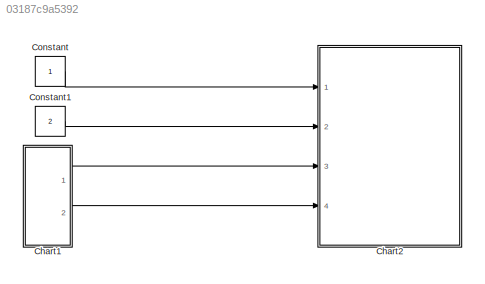
MODEL slx_03187c9a5392
KIND model
CONFIG AbsTol = auto
CONFIG EnableMultiTasking = off
CONFIG FixedStep = auto
CONFIG MaxStep = auto
CONFIG MinStep = auto
CONFIG RelTol = 1e-3
CONFIG SampleTimeConstraint = Unconstrained
CONFIG Solver = VariableStepAuto
CONFIG SolverName = VariableStepAuto
CONFIG StartTime = 0.0
CONFIG StopTime = 0.6
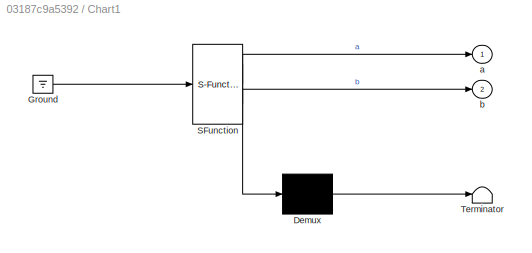
BLOCK [SubSystem] Chart1
  ErrorFcn = Stateflow.Translate.translate
  PermitHierarchicalResolution = ExplicitOnly
  Ports = [0, 2]
  RequestExecContextInheritance = off
  SFBlockType = Chart
  TreatAsAtomicUnit = on
BLOCK [Demux] Chart1/ Demux 
  Outputs = 1
  Ports = [1, 1]
BLOCK [Ground] Chart1/ Ground 
BLOCK [S-Function] Chart1/ SFunction 
  EnableBusSupport = on
  FunctionName = sf_sfun
  PortCounts = [1 3]
  Ports = [1, 3]
  SFcnIsStateOwnerBlock = off
  SFunctionDeploymentMode = off
  Tag = Stateflow S-Function 3
BLOCK [Terminator] Chart1/ Terminator 
BLOCK [Outport] Chart1/a
  VectorParamsAs1DForOutWhenUnconnected = off
BLOCK [Outport] Chart1/b
  Port = 2
  VectorParamsAs1DForOutWhenUnconnected = off
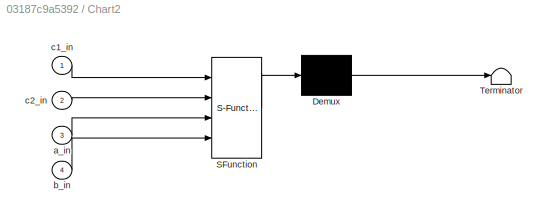
BLOCK [SubSystem] Chart2
  ErrorFcn = Stateflow.Translate.translate
  PermitHierarchicalResolution = ExplicitOnly
  Ports = [4]
  RequestExecContextInheritance = off
  SFBlockType = Chart
  TreatAsAtomicUnit = on
BLOCK [Demux] Chart2/ Demux 
  Outputs = 1
  Ports = [1, 1]
BLOCK [S-Function] Chart2/ SFunction 
  EnableBusSupport = on
  FunctionName = sf_sfun
  PortCounts = [4 1]
  Ports = [4, 1]
  SFcnIsStateOwnerBlock = off
  SFunctionDeploymentMode = off
  Tag = Stateflow S-Function 1
BLOCK [Terminator] Chart2/ Terminator 
BLOCK [Inport] Chart2/a_in
  Port = 3
BLOCK [Inport] Chart2/b_in
  Port = 4
BLOCK [Inport] Chart2/c1_in
BLOCK [Inport] Chart2/c2_in
  Port = 2
BLOCK [Constant] Constant
BLOCK [Constant] Constant1
  Value = 2
LINE Chart1:1 -> Chart2:3
LINE Chart1:2 -> Chart2:4
LINE Constant1:1 -> Chart2:2
LINE Constant:1 -> Chart2:1
CHART Chart2 states=3 transitions=1
  STATE_LABEL 'f'
  STATE_LABEL 'SCRIPT:\nfunction f()\n  fprintf("%.0f %.0f %.0f %.0f\\n", c1_in, c2_in, a_in, b_in);'
  STATE_LABEL 'A1\nen: g("en_A1");\ndu: f();'
  STATE_LABEL 'g(s)'
  STATE_LABEL 'SCRIPT:\nfunction g(s)\n  fprintf(s+"\\n");\n'
CHART Chart1 states=3 transitions=3
  STATE_LABEL 'A\nen: f("en_A")'
  STATE_LABEL 'f(s)'
  STATE_LABEL 'SCRIPT:\nfunction f(s)\n  fprintf(s+"\\n");'
  STATE_LABEL 'B\nen:\nf("en_B")'
CHART  states=0 transitions=0
CHART  states=0 transitions=0
